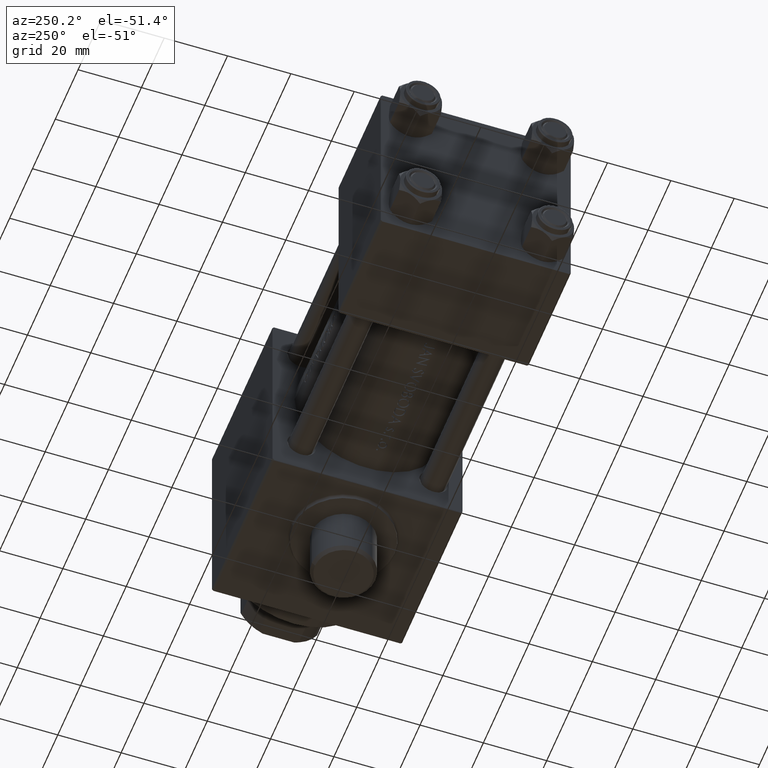
[diagram: clean part render]
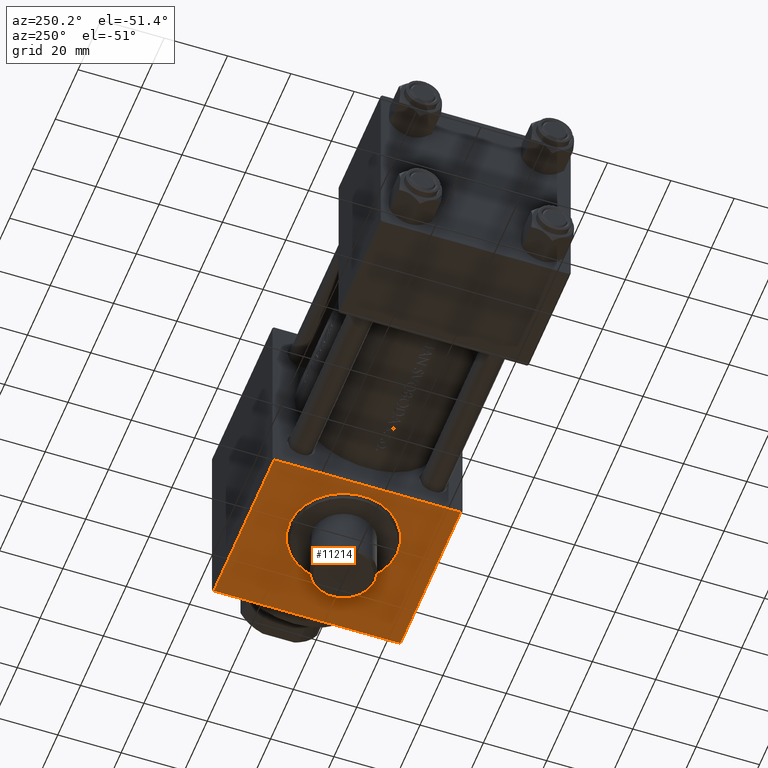
[diagram: same view with one face highlighted and labeled with its STEP entity id]
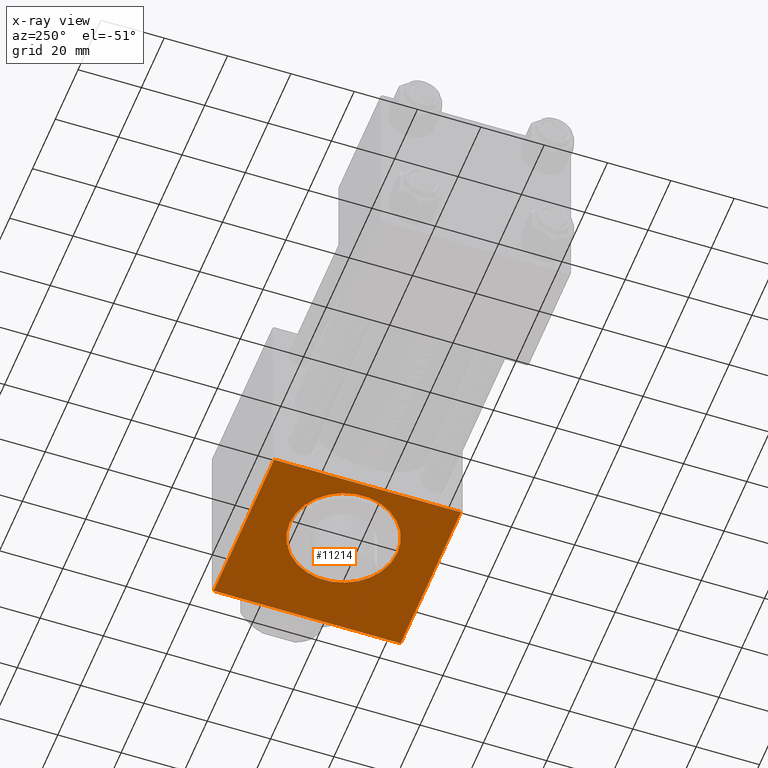
[diagram: x-ray of the same camera — body ghosted, the highlighted face saturated]
A machine part, auxiliary view. The second image highlights one B-rep face of the part: STEP entity #11214.
The next image is the same camera in x-ray: the body ghosted, the highlighted face saturated — about 0% of this face is hidden behind the body in this view.
In plain terms, the highlighted planar face has unit normal (0, 0, -1).
Its self-contained STEP definition (entity closure, byte-faithful):
#249 = AXIS2_PLACEMENT_3D ( 'NONE', #28502, #25207, #25438 ) ;
#1348 = EDGE_CURVE ( 'NONE', #24299, #14382, #6268, .T. ) ;
#1686 = VERTEX_POINT ( 'NONE', #40116 ) ;
#4210 = LINE ( 'NONE', #18242, #19377 ) ;
#4386 = CARTESIAN_POINT ( 'NONE',  ( 115.9999999999999858, 31.49999999999998579, 17.00000000000002487 ) ) ;
#6268 = LINE ( 'NONE', #35515, #44656 ) ;
#6644 = DIRECTION ( 'NONE',  ( -0.000000000000000000, 1.000000000000000000, 0.000000000000000000 ) ) ;
#6763 = EDGE_LOOP ( 'NONE', ( #41188, #21820, #26789, #10109 ) ) ;
#7192 = DIRECTION ( 'NONE',  ( 0.000000000000000000, 0.000000000000000000, -1.000000000000000000 ) ) ;
#7797 = DIRECTION ( 'NONE',  ( 0.000000000000000000, -1.000000000000000000, -0.000000000000000000 ) ) ;
#8482 = ORIENTED_EDGE ( 'NONE', *, *, #42417, .T. ) ;
#10109 = ORIENTED_EDGE ( 'NONE', *, *, #44025, .T. ) ;
#10392 = PLANE ( 'NONE',  #23922 ) ;
#11214 = ADVANCED_FACE ( 'NONE', ( #23751, #42242 ), #10392, .T. ) ;
#14382 = VERTEX_POINT ( 'NONE', #18364 ) ;
#16798 = CARTESIAN_POINT ( 'NONE',  ( 148.0000000000000000, 31.49999999999998579, -29.49999999999999289 ) ) ;
#17701 = DIRECTION ( 'NONE',  ( -1.000000000000000000, 0.000000000000000000, 0.000000000000000000 ) ) ;
#18242 = CARTESIAN_POINT ( 'NONE',  ( 95.00000000000000000, 31.49999999999998579, 29.99999999999999289 ) ) ;
#18364 = CARTESIAN_POINT ( 'NONE',  ( 148.0000000000000000, 31.49999999999998579, 29.50000000000000711 ) ) ;
#18540 = DIRECTION ( 'NONE',  ( 0.000000000000000000, 0.000000000000000000, 1.000000000000000000 ) ) ;
#18630 = CARTESIAN_POINT ( 'NONE',  ( 148.0000000000000000, 31.49999999999998579, 29.99999999999999289 ) ) ;
#19377 = VECTOR ( 'NONE', #22221, 1000.000000000000000 ) ;
#20451 = CIRCLE ( 'NONE', #249, 17.00000000000002487 ) ;
#20459 = VERTEX_POINT ( 'NONE', #4386 ) ;
#21002 = LINE ( 'NONE', #16798, #25777 ) ;
#21820 = ORIENTED_EDGE ( 'NONE', *, *, #1348, .T. ) ;
#22221 = DIRECTION ( 'NONE',  ( 0.000000000000000000, 0.000000000000000000, -1.000000000000000000 ) ) ;
#23751 = FACE_BOUND ( 'NONE', #45679, .T. ) ;
#23922 = AXIS2_PLACEMENT_3D ( 'NONE', #45524, #6644, #42014 ) ;
#24299 = VERTEX_POINT ( 'NONE', #45000 ) ;
#25207 = DIRECTION ( 'NONE',  ( 0.000000000000000000, -1.000000000000000000, -0.000000000000000000 ) ) ;
#25223 = EDGE_CURVE ( 'NONE', #24299, #1686, #4210, .T. ) ;
#25438 = DIRECTION ( 'NONE',  ( 0.000000000000000000, 0.000000000000000000, 1.000000000000000000 ) ) ;
#25777 = VECTOR ( 'NONE', #17701, 1000.000000000000000 ) ;
#26789 = ORIENTED_EDGE ( 'NONE', *, *, #45277, .T. ) ;
#26870 = CARTESIAN_POINT ( 'NONE',  ( 148.0000000000000000, 31.49999999999998579, -29.49999999999999289 ) ) ;
#28502 = CARTESIAN_POINT ( 'NONE',  ( 115.9999999999999858, 31.49999999999998579, -8.673617379883856746E-17 ) ) ;
#30043 = CARTESIAN_POINT ( 'NONE',  ( 115.9999999999999858, 31.49999999999998579, -17.00000000000002487 ) ) ;
#32704 = LINE ( 'NONE', #18630, #43767 ) ;
#35515 = CARTESIAN_POINT ( 'NONE',  ( 148.0000000000000000, 31.49999999999998579, 29.50000000000000711 ) ) ;
#36786 = VERTEX_POINT ( 'NONE', #30043 ) ;
#38021 = VERTEX_POINT ( 'NONE', #26870 ) ;
#38347 = DIRECTION ( 'NONE',  ( 1.000000000000000000, 0.000000000000000000, 0.000000000000000000 ) ) ;
#39972 = CIRCLE ( 'NONE', #45951, 17.00000000000002487 ) ;
#40116 = CARTESIAN_POINT ( 'NONE',  ( 95.00000000000000000, 31.49999999999998579, -29.49999999999999289 ) ) ;
#40403 = EDGE_CURVE ( 'NONE', #20459, #36786, #20451, .T. ) ;
#41188 = ORIENTED_EDGE ( 'NONE', *, *, #25223, .F. ) ;
#42014 = DIRECTION ( 'NONE',  ( 0.000000000000000000, -0.000000000000000000, 1.000000000000000000 ) ) ;
#42242 = FACE_OUTER_BOUND ( 'NONE', #6763, .T. ) ;
#42417 = EDGE_CURVE ( 'NONE', #36786, #20459, #39972, .T. ) ;
#42605 = ORIENTED_EDGE ( 'NONE', *, *, #40403, .T. ) ;
#43386 = CARTESIAN_POINT ( 'NONE',  ( 115.9999999999999858, 31.49999999999998579, -8.673617379883856746E-17 ) ) ;
#43767 = VECTOR ( 'NONE', #7192, 1000.000000000000000 ) ;
#44025 = EDGE_CURVE ( 'NONE', #38021, #1686, #21002, .T. ) ;
#44656 = VECTOR ( 'NONE', #38347, 1000.000000000000000 ) ;
#45000 = CARTESIAN_POINT ( 'NONE',  ( 95.00000000000000000, 31.49999999999998579, 29.50000000000000711 ) ) ;
#45277 = EDGE_CURVE ( 'NONE', #14382, #38021, #32704, .T. ) ;
#45524 = CARTESIAN_POINT ( 'NONE',  ( 148.0000000000000000, 31.49999999999998579, 29.99999999999999289 ) ) ;
#45679 = EDGE_LOOP ( 'NONE', ( #42605, #8482 ) ) ;
#45951 = AXIS2_PLACEMENT_3D ( 'NONE', #43386, #7797, #18540 ) ;